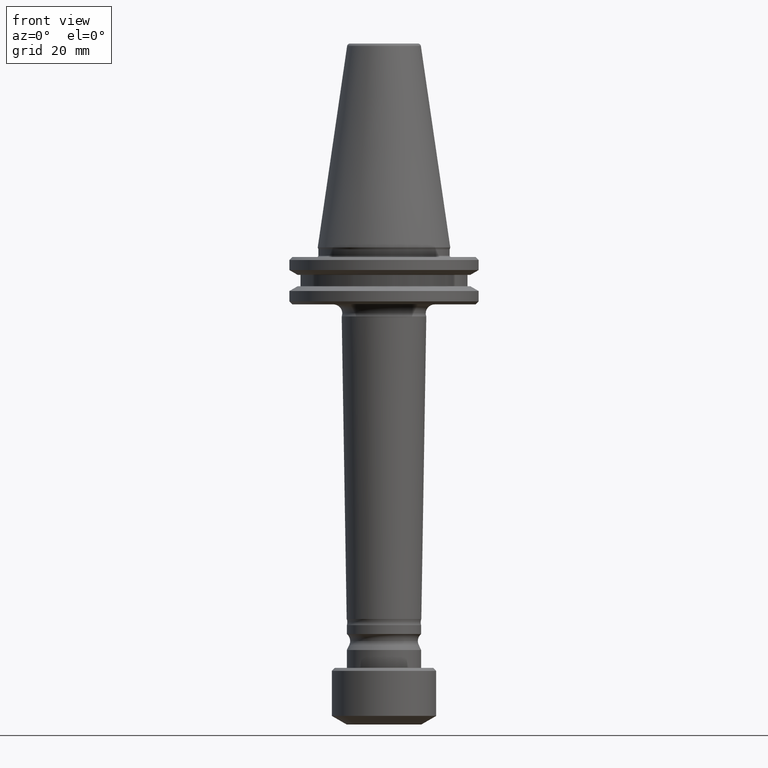
[diagram: clean part render]
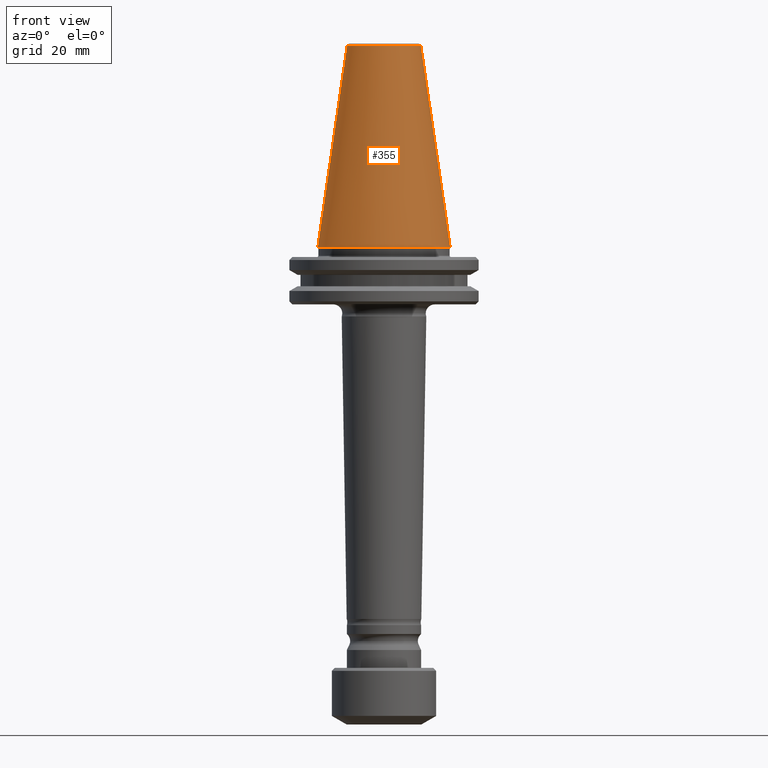
[diagram: same view with one face highlighted and labeled with its STEP entity id]
A machine part, front view. The second image highlights one B-rep face of the part: STEP entity #355.
In plain terms, the highlighted conical surface has half-angle 8.297 deg.
Its self-contained STEP definition (entity closure, byte-faithful):
#52 = EDGE_CURVE ( 'NONE', #1497, #535, #1001, .T. ) ;
#55 = VECTOR ( 'NONE', #1224, 1000.000000000000100 ) ;
#77 = LINE ( 'NONE', #1167, #55 ) ;
#89 = LINE ( 'NONE', #1160, #166 ) ;
#166 = VECTOR ( 'NONE', #1251, 1000.000000000000100 ) ;
#253 = DIRECTION ( 'NONE',  ( -0.0000000000000000000, -0.0000000000000000000, 1.000000000000000000 ) ) ;
#273 = CARTESIAN_POINT ( 'NONE',  ( -22.22499999999893900, 2.721777511104862700E-015, 148.5000000000000300 ) ) ;
#355 = ADVANCED_FACE ( 'NONE', ( #1075 ), #1459, .T. ) ;
#393 = CARTESIAN_POINT ( 'NONE',  ( 0.0000000000000000000, 0.0000000000000000000, 216.0443082268835700 ) ) ;
#440 = CARTESIAN_POINT ( 'NONE',  ( -12.37469540292068800, 0.0000000000000000000, 216.0443082268835700 ) ) ;
#464 = DIRECTION ( 'NONE',  ( 1.000000000000000000, 0.0000000000000000000, 0.0000000000000000000 ) ) ;
#535 = VERTEX_POINT ( 'NONE', #1260 ) ;
#566 = CIRCLE ( 'NONE', #781, 22.22499999999893900 ) ;
#768 = EDGE_CURVE ( 'NONE', #1497, #912, #77, .T. ) ;
#781 = AXIS2_PLACEMENT_3D ( 'NONE', #987, #253, #1091 ) ;
#786 = VERTEX_POINT ( 'NONE', #902 ) ;
#817 = EDGE_CURVE ( 'NONE', #535, #786, #89, .T. ) ;
#902 = CARTESIAN_POINT ( 'NONE',  ( 22.22499999999893900, 0.0000000000000000000, 148.5000000000000300 ) ) ;
#912 = VERTEX_POINT ( 'NONE', #273 ) ;
#959 = DIRECTION ( 'NONE',  ( 0.0000000000000000000, 0.0000000000000000000, -1.000000000000000000 ) ) ;
#971 = ORIENTED_EDGE ( 'NONE', *, *, #1245, .T. ) ;
#987 = CARTESIAN_POINT ( 'NONE',  ( 0.0000000000000000000, 0.0000000000000000000, 148.5000000000000300 ) ) ;
#1001 = CIRCLE ( 'NONE', #1406, 12.37469540292068800 ) ;
#1066 = ORIENTED_EDGE ( 'NONE', *, *, #817, .F. ) ;
#1075 = FACE_OUTER_BOUND ( 'NONE', #1446, .T. ) ;
#1091 = DIRECTION ( 'NONE',  ( 1.000000000000000000, 0.0000000000000000000, 0.0000000000000000000 ) ) ;
#1106 = AXIS2_PLACEMENT_3D ( 'NONE', #1140, #959, #1378 ) ;
#1140 = CARTESIAN_POINT ( 'NONE',  ( 0.0000000000000000000, 0.0000000000000000000, 148.5000000000000300 ) ) ;
#1160 = CARTESIAN_POINT ( 'NONE',  ( 22.22499999999893900, 2.721777511104862700E-015, 148.5000000000000300 ) ) ;
#1161 = ORIENTED_EDGE ( 'NONE', *, *, #52, .F. ) ;
#1167 = CARTESIAN_POINT ( 'NONE',  ( -22.22499999999893900, 0.0000000000000000000, 148.5000000000000300 ) ) ;
#1224 = DIRECTION ( 'NONE',  ( -0.1443082268835100500, 0.0000000000000000000, -0.9895327865481452500 ) ) ;
#1245 = EDGE_CURVE ( 'NONE', #912, #786, #566, .T. ) ;
#1251 = DIRECTION ( 'NONE',  ( 0.1443082268835100500, 1.767266081435205900E-017, -0.9895327865481452500 ) ) ;
#1260 = CARTESIAN_POINT ( 'NONE',  ( 12.37469540292068800, 2.118620311332945800E-015, 216.0443082268835700 ) ) ;
#1378 = DIRECTION ( 'NONE',  ( -1.000000000000000000, 0.0000000000000000000, 0.0000000000000000000 ) ) ;
#1392 = ORIENTED_EDGE ( 'NONE', *, *, #768, .T. ) ;
#1406 = AXIS2_PLACEMENT_3D ( 'NONE', #393, #1489, #464 ) ;
#1446 = EDGE_LOOP ( 'NONE', ( #1066, #1161, #1392, #971 ) ) ;
#1459 = CONICAL_SURFACE ( 'NONE', #1106, 22.22499999999893900, 0.1448138461595623300 ) ;
#1489 = DIRECTION ( 'NONE',  ( -0.0000000000000000000, -0.0000000000000000000, 1.000000000000000000 ) ) ;
#1497 = VERTEX_POINT ( 'NONE', #440 ) ;